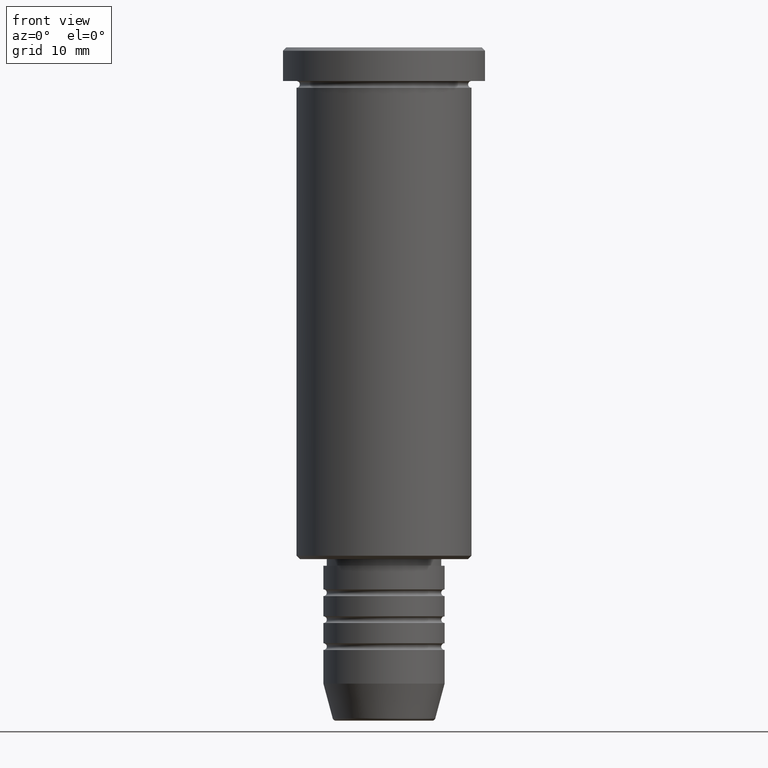
[diagram: clean part render]
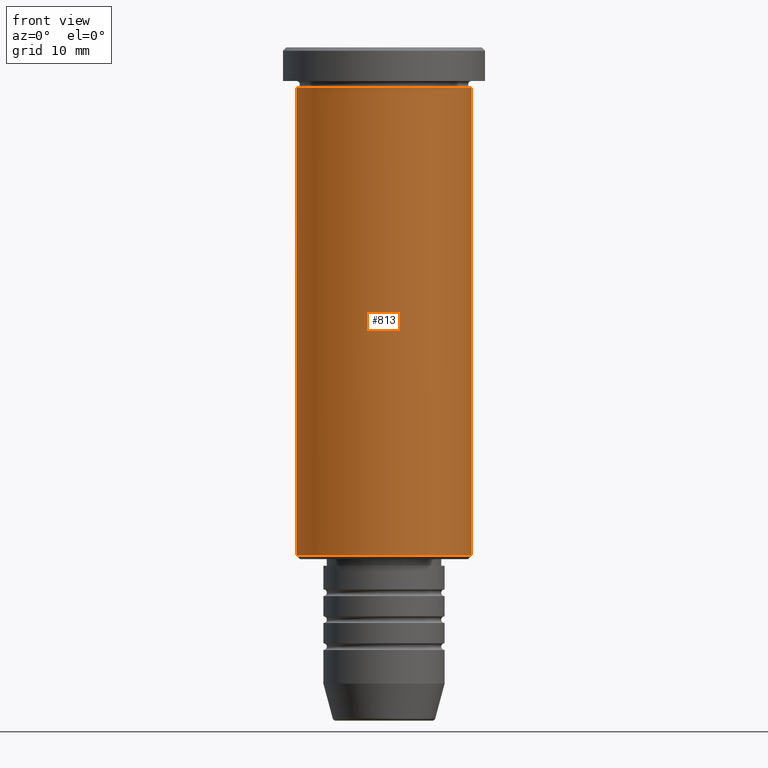
[diagram: same view with one face highlighted and labeled with its STEP entity id]
A machine part, front view. The second image highlights one B-rep face of the part: STEP entity #813.
In plain terms, the highlighted cylindrical surface (partial cylindrical patch) has radius 13 mm, axis along (-0, -0, 1).
Its self-contained STEP definition (entity closure, byte-faithful):
#45 = ORIENTED_EDGE ( 'NONE', *, *, #740, .T. ) ;
#49 = DIRECTION ( 'NONE',  ( 1.000000000000000000, 0.000000000000000000, 0.000000000000000000 ) ) ;
#71 = CARTESIAN_POINT ( 'NONE',  ( -13.00000000000000178, 1.592040838891559293E-15, -75.50000000000000000 ) ) ;
#106 = VERTEX_POINT ( 'NONE', #421 ) ;
#127 = ORIENTED_EDGE ( 'NONE', *, *, #757, .T. ) ;
#137 = CARTESIAN_POINT ( 'NONE',  ( 0.000000000000000000, 0.000000000000000000, -5.999999999999999112 ) ) ;
#142 = ORIENTED_EDGE ( 'NONE', *, *, #1000, .F. ) ;
#181 = CARTESIAN_POINT ( 'NONE',  ( 0.000000000000000000, 0.000000000000000000, -75.50000000000000000 ) ) ;
#250 = LINE ( 'NONE', #1093, #480 ) ;
#267 = DIRECTION ( 'NONE',  ( -0.000000000000000000, -0.000000000000000000, 1.000000000000000000 ) ) ;
#334 = CARTESIAN_POINT ( 'NONE',  ( -13.00000000000000178, 1.592040838891559293E-15, -5.999999999999999112 ) ) ;
#419 = AXIS2_PLACEMENT_3D ( 'NONE', #137, #579, #49 ) ;
#421 = CARTESIAN_POINT ( 'NONE',  ( 13.00000000000000178, 0.000000000000000000, -75.50000000000000000 ) ) ;
#440 = VECTOR ( 'NONE', #883, 1000.000000000000000 ) ;
#480 = VECTOR ( 'NONE', #267, 1000.000000000000000 ) ;
#510 = DIRECTION ( 'NONE',  ( -0.000000000000000000, -0.000000000000000000, 1.000000000000000000 ) ) ;
#533 = FACE_OUTER_BOUND ( 'NONE', #1100, .T. ) ;
#546 = VERTEX_POINT ( 'NONE', #1149 ) ;
#579 = DIRECTION ( 'NONE',  ( -0.000000000000000000, -0.000000000000000000, 1.000000000000000000 ) ) ;
#623 = CARTESIAN_POINT ( 'NONE',  ( 0.000000000000000000, 0.000000000000000000, 0.000000000000000000 ) ) ;
#629 = VERTEX_POINT ( 'NONE', #71 ) ;
#658 = EDGE_CURVE ( 'NONE', #629, #808, #680, .T. ) ;
#680 = LINE ( 'NONE', #1061, #440 ) ;
#689 = CIRCLE ( 'NONE', #976, 13.00000000000000178 ) ;
#728 = DIRECTION ( 'NONE',  ( -1.000000000000000000, 0.000000000000000000, 0.000000000000000000 ) ) ;
#740 = EDGE_CURVE ( 'NONE', #106, #546, #250, .T. ) ;
#757 = EDGE_CURVE ( 'NONE', #629, #106, #689, .T. ) ;
#769 = CIRCLE ( 'NONE', #419, 13.00000000000000178 ) ;
#808 = VERTEX_POINT ( 'NONE', #334 ) ;
#813 = ADVANCED_FACE ( 'NONE', ( #533 ), #1067, .T. ) ;
#883 = DIRECTION ( 'NONE',  ( -0.000000000000000000, -0.000000000000000000, 1.000000000000000000 ) ) ;
#903 = ORIENTED_EDGE ( 'NONE', *, *, #658, .F. ) ;
#976 = AXIS2_PLACEMENT_3D ( 'NONE', #181, #1079, #728 ) ;
#984 = DIRECTION ( 'NONE',  ( 1.000000000000000000, 0.000000000000000000, 0.000000000000000000 ) ) ;
#1000 = EDGE_CURVE ( 'NONE', #808, #546, #769, .T. ) ;
#1061 = CARTESIAN_POINT ( 'NONE',  ( -13.00000000000000178, 1.592040838891559293E-15, 0.000000000000000000 ) ) ;
#1067 = CYLINDRICAL_SURFACE ( 'NONE', #1147, 13.00000000000000178 ) ;
#1079 = DIRECTION ( 'NONE',  ( -0.000000000000000000, -0.000000000000000000, 1.000000000000000000 ) ) ;
#1093 = CARTESIAN_POINT ( 'NONE',  ( 13.00000000000000178, 0.000000000000000000, 0.000000000000000000 ) ) ;
#1100 = EDGE_LOOP ( 'NONE', ( #903, #127, #45, #142 ) ) ;
#1147 = AXIS2_PLACEMENT_3D ( 'NONE', #623, #510, #984 ) ;
#1149 = CARTESIAN_POINT ( 'NONE',  ( 13.00000000000000178, 0.000000000000000000, -5.999999999999999112 ) ) ;